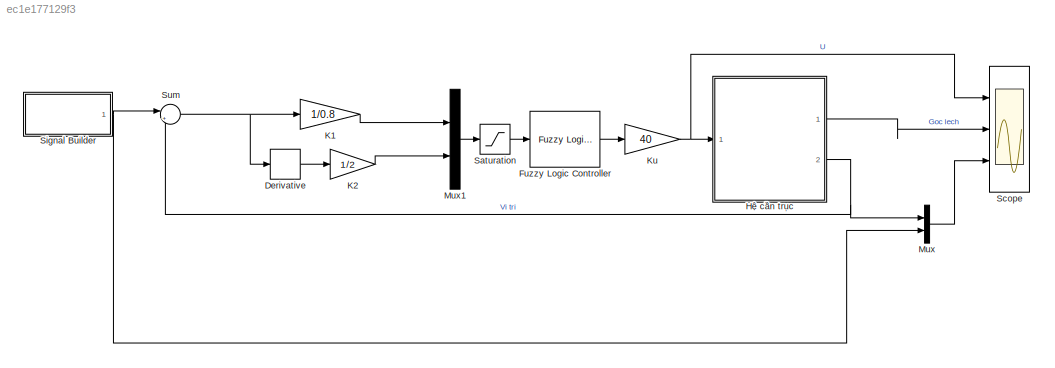
MODEL slx_ec1e177129f3
KIND model
CONFIG AbsTol = auto
CONFIG FixedStep = 0.01
CONFIG MaxStep = auto
CONFIG MinStep = auto
CONFIG RelTol = 1e-3
CONFIG SampleTimeConstraint = Unconstrained
CONFIG Solver = ode5
CONFIG SolverMode = SingleTasking
CONFIG SolverName = ode5
CONFIG StartTime = 0.0
CONFIG StopTime = 60
BLOCK [Derivative] Derivative
BLOCK [Reference] Fuzzy Logic Controller  REF=fuzblock/Fuzzy Logic   (lib defined in mdl_858b3b3e7478)
Controller
  Ports = [1, 1]
  SourceBlock = fuzblock/Fuzzy Logic \nController
  SourceType = Fuzzy Inference System
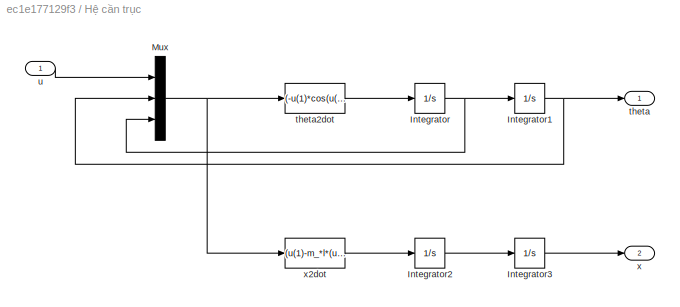
BLOCK [SubSystem] Hệ cần trục
  Ports = [1, 2]
  RequestExecContextInheritance = off
BLOCK [Integrator] Hệ cần trục/Integrator
  Ports = [1, 1]
BLOCK [Integrator] Hệ cần trục/Integrator1
  Ports = [1, 1]
BLOCK [Integrator] Hệ cần trục/Integrator2
  Ports = [1, 1]
BLOCK [Integrator] Hệ cần trục/Integrator3
  Ports = [1, 1]
BLOCK [Mux] Hệ cần trục/Mux
  DisplayOption = bar
  Inputs = 3
  Ports = [3, 1]
BLOCK [Outport] Hệ cần trục/theta
  IconDisplay = Port number
BLOCK [Fcn] Hệ cần trục/theta2dot
  Expr = (-u(1)*cos(u(2))+m_*g*(u(3)^2)*sin(u(2))*cos(u(2))+(M+m_)*g*sin(u(2))) / (m_*l*(cos(u(2)))^2 - (M+m_)*l)
BLOCK [Inport] Hệ cần trục/u
  IconDisplay = Port number
BLOCK [Outport] Hệ cần trục/x
  IconDisplay = Port number
  Port = 2
BLOCK [Fcn] Hệ cần trục/x2dot
  Expr = (u(1)-m_*l*(u(3)^2)*sin(u(2)) - m_*g*sin(u(2))*cos(u(2)) ) / ((M+m_) - m_*cos(u(2))^2)
BLOCK [Gain] K1
  Gain = 1/0.8
  OutDataTypeStr = Inherit: Inherit via internal rule
  ParamDataTypeStr = Inherit: Inherit via internal rule
  SaturateOnIntegerOverflow = off
BLOCK [Gain] K2
  Gain = 1/2
  OutDataTypeStr = Inherit: Inherit via internal rule
  ParamDataTypeStr = Inherit: Inherit via internal rule
  SaturateOnIntegerOverflow = off
BLOCK [Gain] Ku
  Gain = 40
  OutDataTypeStr = Inherit: Inherit via internal rule
  ParamDataTypeStr = Inherit: Inherit via internal rule
  SaturateOnIntegerOverflow = off
BLOCK [Mux] Mux
  DisplayOption = bar
  Inputs = 2
  Ports = [2, 1]
BLOCK [Mux] Mux1
  DisplayOption = bar
  Inputs = 2
  Ports = [2, 1]
BLOCK [Saturate] Saturation
  InputPortMap = u0
  LowerLimit = -1
  Ports = [1, 1]
  UpperLimit = 1
BLOCK [Scope] Scope
  Floating = off
  NumInputPorts = 3
  Ports = [3]
  ScopeSpecificationString = Simulink.scopes.TimeScopeBlockCfg('CurrentConfiguration', extmgr.ConfigurationSet(extmgr.Configuration('Core','General UI',true,'FigureColor',[1 1 1]),extmgr.Configuration('Core','Source UI',true),extmgr.Configuration('Sources','WiredSimulink',true),extmgr.Configuration('Visuals','Time Domain',true,'SerializedDisplays',{struct('MinYLimReal','-44.72463','MaxYLimReal','46.63612','YLabelReal','','Min...<+3216ch>
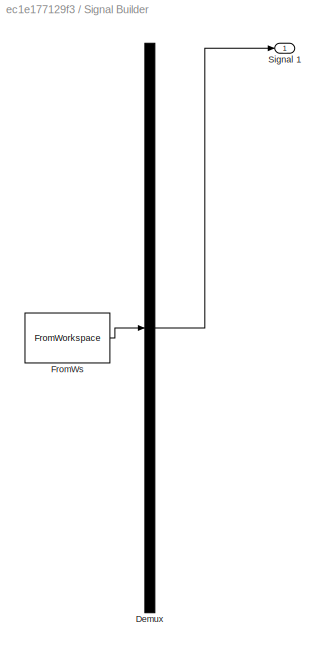
BLOCK [SubSystem] Signal Builder
  ClipboardFcn = sigbuilder_block('clipboard');
  CloseFcn = sigbuilder_block('close');
  ContinueFcn = sigbuilder_block('continue');
  CopyFcn = sigbuilder_block('copy');
  DeleteFcn = sigbuilder_block('delete');
  LoadFcn = sigbuilder_block('load');
  MaskHideContents = on
  ModelCloseFcn = sigbuilder_block('modelClose');
  NameChangeFcn = sigbuilder_block('namechange');
  OpenFcn = sigbuilder_block('open',[558.6 145.8 550.8 400.2 ]);
  PauseFcn = sigbuilder_block('pause');
  Ports = [0, 1]
  PreSaveFcn = sigbuilder_block('preSave');
  RequestExecContextInheritance = off
  StartFcn = sigbuilder_block('start');
  StopFcn = sigbuilder_block('stop');
  Tag = STV Subsys
BLOCK [Demux] Signal Builder/Demux
  Outputs = 1
  Ports = [1, 1]
  Tag = STV Demux
BLOCK [FromWorkspace] Signal Builder/FromWs
  SampleTime = 0
  Tag = STV FromWs
  VariableName = tuvar
  ZeroCross = on
BLOCK [Outport] Signal Builder/Signal 1
  IconDisplay = Port number
  Tag = STV Outport
BLOCK [Sum] Sum
  IconShape = round
  InputSameDT = off
  Inputs = |+-
  OutDataTypeStr = Inherit: Inherit via internal rule
  Ports = [2, 1]
  SaturateOnIntegerOverflow = off
LINE Derivative:1 -> K2:1
LINE Fuzzy Logic Controller:1 -> Ku:1
NET Hệ cần trục/Integrator1:1 -> Hệ cần trục/Mux:2, Hệ cần trục/theta:1
LINE Hệ cần trục/Integrator2:1 -> Hệ cần trục/Integrator3:1
LINE Hệ cần trục/Integrator3:1 -> Hệ cần trục/x:1
NET Hệ cần trục/Integrator:1 -> Hệ cần trục/Integrator1:1, Hệ cần trục/Mux:3
NET Hệ cần trục/Mux:1 -> Hệ cần trục/theta2dot:1, Hệ cần trục/x2dot:1
LINE Hệ cần trục/theta2dot:1 -> Hệ cần trục/Integrator:1
LINE Hệ cần trục/u:1 -> Hệ cần trục/Mux:1
LINE Hệ cần trục/x2dot:1 -> Hệ cần trục/Integrator2:1
LINE Hệ cần trục:1 -> Scope:2
NET Hệ cần trục:2 -> Mux:1, Sum:2
LINE K1:1 -> Mux1:1
LINE K2:1 -> Mux1:2
NET Ku:1 -> Hệ cần trục:1, Scope:1
LINE Mux1:1 -> Saturation:1
LINE Mux:1 -> Scope:3
LINE Saturation:1 -> Fuzzy Logic Controller:1
NET Signal Builder:1 -> Mux:2, Sum:1
NET Sum:1 -> Derivative:1, K1:1
note: NET lines group one-source signal fan-out (src -> all destinations, sorted); 1:1 wires keep LINE
